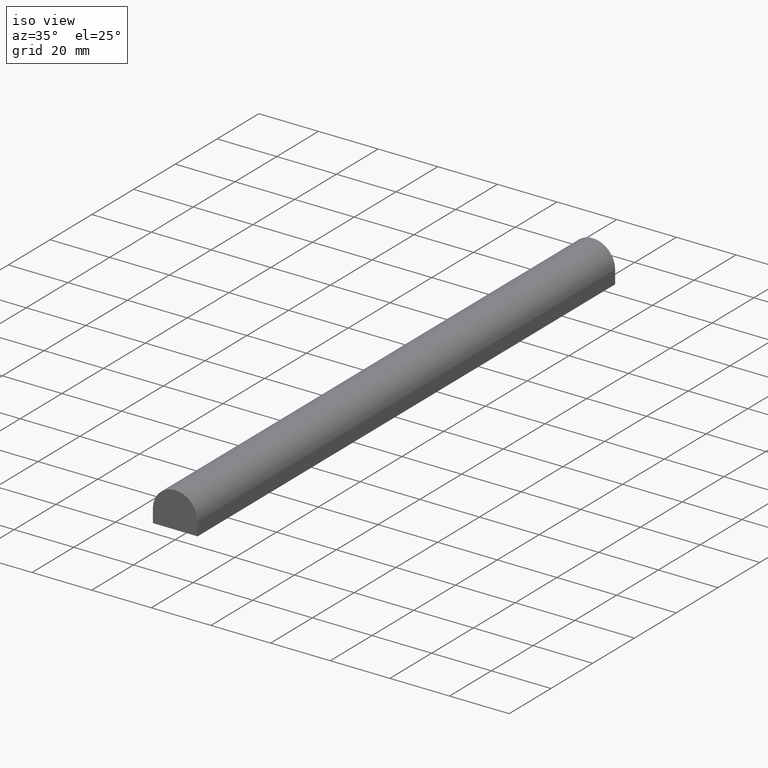
[diagram: clean part render]
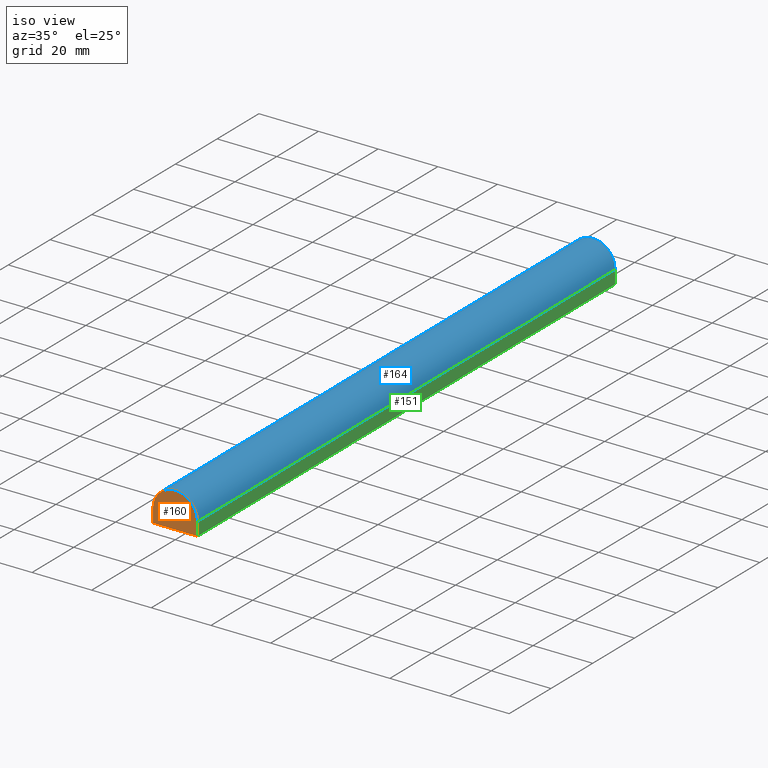
[diagram: same view with three faces highlighted in distinct colors, each labeled with its STEP entity id]
A machine part, iso view with three faces highlighted in distinct colors.
Their STEP definitions:

[orange] entity #160 — the highlighted planar face has unit normal (0, 1, 0).
#7 = CARTESIAN_POINT ( 'NONE',  ( 7.500000000000000000, 0.0000000000000000000, 0.0000000000000000000 ) ) ;
#18 = AXIS2_PLACEMENT_3D ( 'NONE', #211, #108, #201 ) ;
#20 = CARTESIAN_POINT ( 'NONE',  ( 7.500000000000000000, 0.0000000000000000000, -6.000000000000000000 ) ) ;
#21 = DIRECTION ( 'NONE',  ( -0.0000000000000000000, -0.0000000000000000000, 1.000000000000000000 ) ) ;
#33 = EDGE_CURVE ( 'NONE', #209, #179, #194, .T. ) ;
#37 = LINE ( 'NONE', #7, #120 ) ;
#38 = ORIENTED_EDGE ( 'NONE', *, *, #233, .T. ) ;
#41 = VECTOR ( 'NONE', #172, 1000.000000000000000 ) ;
#53 = VECTOR ( 'NONE', #105, 1000.000000000000000 ) ;
#60 = DIRECTION ( 'NONE',  ( 0.0000000000000000000, 0.0000000000000000000, 1.000000000000000000 ) ) ;
#62 = CARTESIAN_POINT ( 'NONE',  ( -7.500000000000000000, 0.0000000000000000000, -6.000000000000000000 ) ) ;
#66 = VERTEX_POINT ( 'NONE', #20 ) ;
#69 = LINE ( 'NONE', #114, #41 ) ;
#84 = ORIENTED_EDGE ( 'NONE', *, *, #33, .T. ) ;
#91 = FACE_OUTER_BOUND ( 'NONE', #136, .T. ) ;
#95 = PLANE ( 'NONE',  #18 ) ;
#98 = CARTESIAN_POINT ( 'NONE',  ( 7.500000000000000000, 0.0000000000000000000, -1.500000000000000000 ) ) ;
#105 = DIRECTION ( 'NONE',  ( -0.0000000000000000000, -0.0000000000000000000, -1.000000000000000000 ) ) ;
#107 = CARTESIAN_POINT ( 'NONE',  ( -7.500000000000000000, 0.0000000000000000000, 0.0000000000000000000 ) ) ;
#108 = DIRECTION ( 'NONE',  ( -0.0000000000000000000, 1.000000000000000000, 0.0000000000000000000 ) ) ;
#114 = CARTESIAN_POINT ( 'NONE',  ( 0.0000000000000000000, 0.0000000000000000000, -6.000000000000000000 ) ) ;
#120 = VECTOR ( 'NONE', #21, 1000.000000000000000 ) ;
#136 = EDGE_LOOP ( 'NONE', ( #38, #196, #84, #149 ) ) ;
#138 = CARTESIAN_POINT ( 'NONE',  ( -7.500000000000000000, 0.0000000000000000000, -1.500000000000000000 ) ) ;
#149 = ORIENTED_EDGE ( 'NONE', *, *, #208, .T. ) ;
#160 = ADVANCED_FACE ( 'NONE', ( #91 ), #95, .F. ) ;
#163 = CARTESIAN_POINT ( 'NONE',  ( 0.0000000000000000000, 0.0000000000000000000, -1.500000000000000000 ) ) ;
#172 = DIRECTION ( 'NONE',  ( 1.000000000000000000, -0.0000000000000000000, -0.0000000000000000000 ) ) ;
#179 = VERTEX_POINT ( 'NONE', #62 ) ;
#181 = EDGE_CURVE ( 'NONE', #231, #209, #215, .T. ) ;
#192 = DIRECTION ( 'NONE',  ( -0.0000000000000000000, -1.000000000000000000, -0.0000000000000000000 ) ) ;
#194 = LINE ( 'NONE', #107, #53 ) ;
#196 = ORIENTED_EDGE ( 'NONE', *, *, #181, .T. ) ;
#201 = DIRECTION ( 'NONE',  ( 1.000000000000000000, 0.0000000000000000000, 0.0000000000000000000 ) ) ;
#208 = EDGE_CURVE ( 'NONE', #179, #66, #69, .T. ) ;
#209 = VERTEX_POINT ( 'NONE', #138 ) ;
#211 = CARTESIAN_POINT ( 'NONE',  ( 0.0000000000000000000, 0.0000000000000000000, 0.0000000000000000000 ) ) ;
#215 = CIRCLE ( 'NONE', #222, 7.500000000000000000 ) ;
#222 = AXIS2_PLACEMENT_3D ( 'NONE', #163, #192, #60 ) ;
#231 = VERTEX_POINT ( 'NONE', #98 ) ;
#233 = EDGE_CURVE ( 'NONE', #66, #231, #37, .T. ) ;

[blue] entity #164 — the highlighted cylindrical surface (edge-blend (fillet) strip) has radius 7.5 mm, axis along (0, -1, 0).
#4 = CIRCLE ( 'NONE', #96, 7.500000000000000000 ) ;
#10 = EDGE_CURVE ( 'NONE', #104, #49, #4, .T. ) ;
#19 = CARTESIAN_POINT ( 'NONE',  ( 0.0000000000000000000, 1000.000000000000000, -1.500000000000000000 ) ) ;
#23 = ORIENTED_EDGE ( 'NONE', *, *, #52, .T. ) ;
#39 = FACE_OUTER_BOUND ( 'NONE', #202, .T. ) ;
#47 = ORIENTED_EDGE ( 'NONE', *, *, #10, .T. ) ;
#49 = VERTEX_POINT ( 'NONE', #157 ) ;
#50 = LINE ( 'NONE', #58, #232 ) ;
#52 = EDGE_CURVE ( 'NONE', #49, #209, #50, .T. ) ;
#58 = CARTESIAN_POINT ( 'NONE',  ( -7.500000000000000000, 1000.000000000000000, -1.500000000000000000 ) ) ;
#60 = DIRECTION ( 'NONE',  ( 0.0000000000000000000, 0.0000000000000000000, 1.000000000000000000 ) ) ;
#74 = CARTESIAN_POINT ( 'NONE',  ( 0.0000000000000000000, 200.0000000000000000, -1.500000000000000000 ) ) ;
#81 = ORIENTED_EDGE ( 'NONE', *, *, #181, .F. ) ;
#85 = LINE ( 'NONE', #93, #137 ) ;
#93 = CARTESIAN_POINT ( 'NONE',  ( 7.500000000000000000, 1000.000000000000000, -1.500000000000000000 ) ) ;
#96 = AXIS2_PLACEMENT_3D ( 'NONE', #74, #125, #212 ) ;
#98 = CARTESIAN_POINT ( 'NONE',  ( 7.500000000000000000, 0.0000000000000000000, -1.500000000000000000 ) ) ;
#104 = VERTEX_POINT ( 'NONE', #148 ) ;
#116 = ORIENTED_EDGE ( 'NONE', *, *, #146, .F. ) ;
#122 = AXIS2_PLACEMENT_3D ( 'NONE', #19, #226, #203 ) ;
#125 = DIRECTION ( 'NONE',  ( -0.0000000000000000000, -1.000000000000000000, -0.0000000000000000000 ) ) ;
#137 = VECTOR ( 'NONE', #213, 1000.000000000000000 ) ;
#138 = CARTESIAN_POINT ( 'NONE',  ( -7.500000000000000000, 0.0000000000000000000, -1.500000000000000000 ) ) ;
#139 = CYLINDRICAL_SURFACE ( 'NONE', #122, 7.500000000000000000 ) ;
#146 = EDGE_CURVE ( 'NONE', #104, #231, #85, .T. ) ;
#148 = CARTESIAN_POINT ( 'NONE',  ( 7.500000000000000000, 200.0000000000000000, -1.500000000000000000 ) ) ;
#157 = CARTESIAN_POINT ( 'NONE',  ( -7.500000000000000000, 200.0000000000000000, -1.500000000000000000 ) ) ;
#163 = CARTESIAN_POINT ( 'NONE',  ( 0.0000000000000000000, 0.0000000000000000000, -1.500000000000000000 ) ) ;
#164 = ADVANCED_FACE ( 'NONE', ( #39 ), #139, .T. ) ;
#181 = EDGE_CURVE ( 'NONE', #231, #209, #215, .T. ) ;
#192 = DIRECTION ( 'NONE',  ( -0.0000000000000000000, -1.000000000000000000, -0.0000000000000000000 ) ) ;
#202 = EDGE_LOOP ( 'NONE', ( #81, #116, #47, #23 ) ) ;
#203 = DIRECTION ( 'NONE',  ( 0.0000000000000000000, 0.0000000000000000000, -1.000000000000000000 ) ) ;
#209 = VERTEX_POINT ( 'NONE', #138 ) ;
#212 = DIRECTION ( 'NONE',  ( 0.0000000000000000000, 0.0000000000000000000, 1.000000000000000000 ) ) ;
#213 = DIRECTION ( 'NONE',  ( 0.0000000000000000000, -1.000000000000000000, 0.0000000000000000000 ) ) ;
#215 = CIRCLE ( 'NONE', #222, 7.500000000000000000 ) ;
#219 = DIRECTION ( 'NONE',  ( 0.0000000000000000000, -1.000000000000000000, 0.0000000000000000000 ) ) ;
#222 = AXIS2_PLACEMENT_3D ( 'NONE', #163, #192, #60 ) ;
#226 = DIRECTION ( 'NONE',  ( 0.0000000000000000000, -1.000000000000000000, 0.0000000000000000000 ) ) ;
#231 = VERTEX_POINT ( 'NONE', #98 ) ;
#232 = VECTOR ( 'NONE', #219, 1000.000000000000000 ) ;

[green] entity #151 — the highlighted planar face has unit normal (1, 0, 0).
#5 = DIRECTION ( 'NONE',  ( 0.0000000000000000000, 0.0000000000000000000, -1.000000000000000000 ) ) ;
#6 = LINE ( 'NONE', #87, #145 ) ;
#7 = CARTESIAN_POINT ( 'NONE',  ( 7.500000000000000000, 0.0000000000000000000, 0.0000000000000000000 ) ) ;
#11 = ORIENTED_EDGE ( 'NONE', *, *, #17, .F. ) ;
#12 = ORIENTED_EDGE ( 'NONE', *, *, #233, .F. ) ;
#17 = EDGE_CURVE ( 'NONE', #61, #66, #6, .T. ) ;
#20 = CARTESIAN_POINT ( 'NONE',  ( 7.500000000000000000, 0.0000000000000000000, -6.000000000000000000 ) ) ;
#21 = DIRECTION ( 'NONE',  ( -0.0000000000000000000, -0.0000000000000000000, 1.000000000000000000 ) ) ;
#30 = LINE ( 'NONE', #238, #90 ) ;
#37 = LINE ( 'NONE', #7, #120 ) ;
#48 = FACE_OUTER_BOUND ( 'NONE', #141, .T. ) ;
#61 = VERTEX_POINT ( 'NONE', #235 ) ;
#66 = VERTEX_POINT ( 'NONE', #20 ) ;
#85 = LINE ( 'NONE', #93, #137 ) ;
#87 = CARTESIAN_POINT ( 'NONE',  ( 7.500000000000000000, 1000.000000000000000, -6.000000000000000000 ) ) ;
#90 = VECTOR ( 'NONE', #166, 1000.000000000000000 ) ;
#93 = CARTESIAN_POINT ( 'NONE',  ( 7.500000000000000000, 1000.000000000000000, -1.500000000000000000 ) ) ;
#98 = CARTESIAN_POINT ( 'NONE',  ( 7.500000000000000000, 0.0000000000000000000, -1.500000000000000000 ) ) ;
#100 = DIRECTION ( 'NONE',  ( 1.000000000000000000, 0.0000000000000000000, 0.0000000000000000000 ) ) ;
#104 = VERTEX_POINT ( 'NONE', #148 ) ;
#120 = VECTOR ( 'NONE', #21, 1000.000000000000000 ) ;
#137 = VECTOR ( 'NONE', #213, 1000.000000000000000 ) ;
#141 = EDGE_LOOP ( 'NONE', ( #12, #11, #223, #185 ) ) ;
#145 = VECTOR ( 'NONE', #158, 1000.000000000000000 ) ;
#146 = EDGE_CURVE ( 'NONE', #104, #231, #85, .T. ) ;
#148 = CARTESIAN_POINT ( 'NONE',  ( 7.500000000000000000, 200.0000000000000000, -1.500000000000000000 ) ) ;
#151 = ADVANCED_FACE ( 'NONE', ( #48 ), #169, .T. ) ;
#158 = DIRECTION ( 'NONE',  ( 0.0000000000000000000, -1.000000000000000000, 0.0000000000000000000 ) ) ;
#166 = DIRECTION ( 'NONE',  ( -0.0000000000000000000, -0.0000000000000000000, 1.000000000000000000 ) ) ;
#169 = PLANE ( 'NONE',  #217 ) ;
#185 = ORIENTED_EDGE ( 'NONE', *, *, #146, .T. ) ;
#213 = DIRECTION ( 'NONE',  ( 0.0000000000000000000, -1.000000000000000000, 0.0000000000000000000 ) ) ;
#217 = AXIS2_PLACEMENT_3D ( 'NONE', #221, #100, #5 ) ;
#221 = CARTESIAN_POINT ( 'NONE',  ( 7.500000000000000000, 1000.000000000000000, -6.000000000000000000 ) ) ;
#223 = ORIENTED_EDGE ( 'NONE', *, *, #229, .T. ) ;
#229 = EDGE_CURVE ( 'NONE', #61, #104, #30, .T. ) ;
#231 = VERTEX_POINT ( 'NONE', #98 ) ;
#233 = EDGE_CURVE ( 'NONE', #66, #231, #37, .T. ) ;
#235 = CARTESIAN_POINT ( 'NONE',  ( 7.500000000000000000, 200.0000000000000000, -6.000000000000000000 ) ) ;
#238 = CARTESIAN_POINT ( 'NONE',  ( 7.500000000000000000, 200.0000000000000000, 0.0000000000000000000 ) ) ;